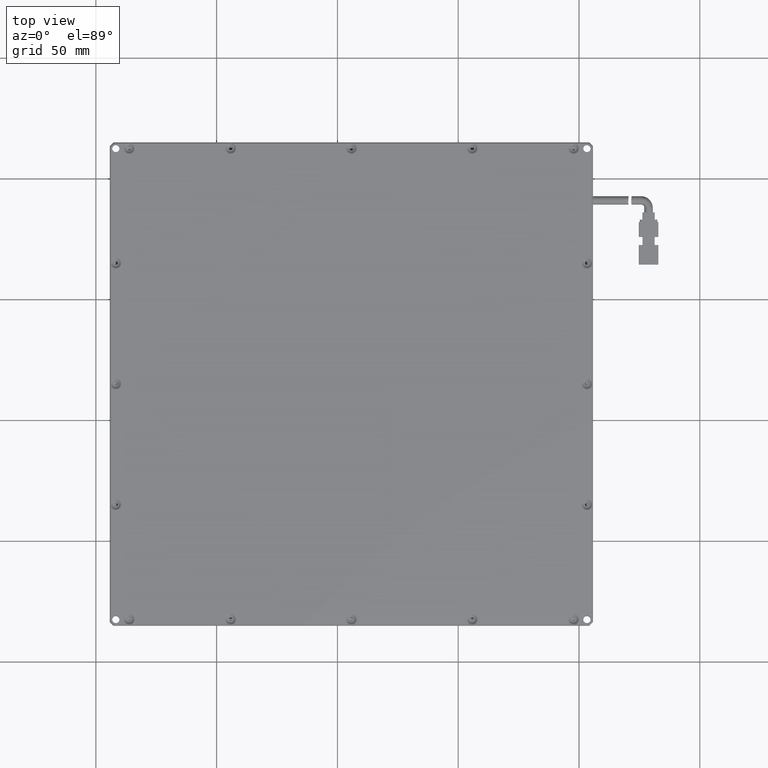
[diagram: clean part render]
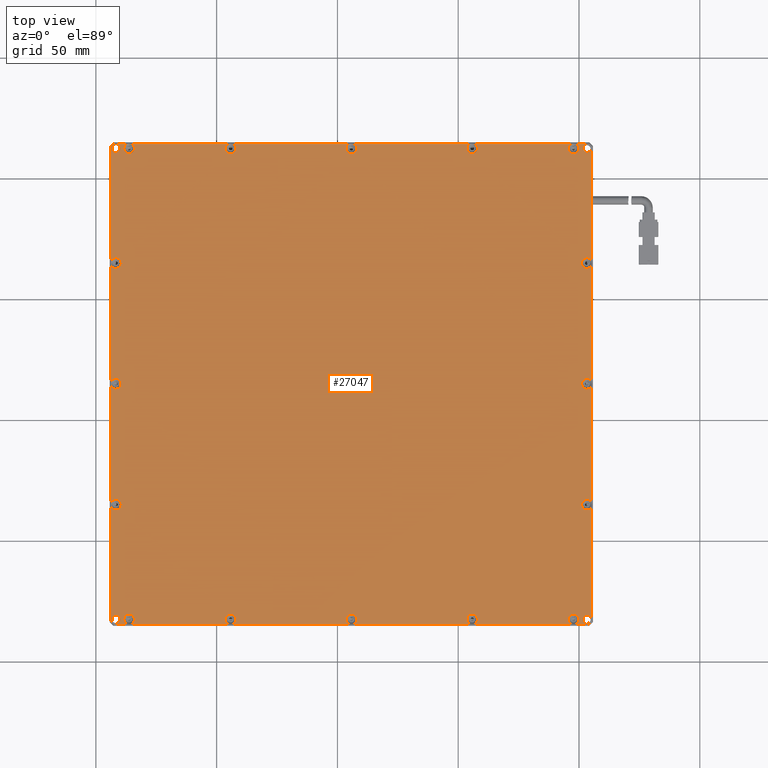
[diagram: same view with one face highlighted and labeled with its STEP entity id]
A machine part, top view. The second image highlights one B-rep face of the part: STEP entity #27047.
In plain terms, the highlighted planar face has unit normal (0, 0, -1).
Its self-contained STEP definition (entity closure, byte-faithful):
#115 = CIRCLE ( 'NONE', #29309, 2.200000000013913000 ) ;
#138 = DIRECTION ( 'NONE',  ( -0.0000000000000000000, 0.0000000000000000000, -1.000000000000000000 ) ) ;
#168 = VERTEX_POINT ( 'NONE', #12301 ) ;
#323 = EDGE_CURVE ( 'NONE', #27189, #15356, #30804, .T. ) ;
#335 = VECTOR ( 'NONE', #5288, 1000.000000000000100 ) ;
#409 = VERTEX_POINT ( 'NONE', #15234 ) ;
#416 = AXIS2_PLACEMENT_3D ( 'NONE', #30280, #15474, #718 ) ;
#519 = CIRCLE ( 'NONE', #26809, 2.199999999982077600 ) ;
#543 = AXIS2_PLACEMENT_3D ( 'NONE', #4890, #22145, #7360 ) ;
#649 = CARTESIAN_POINT ( 'NONE',  ( -142.5118486178745300, 114.4508215962441500, 5.999999999999998200 ) ) ;
#650 = VERTEX_POINT ( 'NONE', #6861 ) ;
#679 = AXIS2_PLACEMENT_3D ( 'NONE', #27394, #12621, #29919 ) ;
#718 = DIRECTION ( 'NONE',  ( 1.000000000000000000, 0.0000000000000000000, 0.0000000000000000000 ) ) ;
#730 = ORIENTED_EDGE ( 'NONE', *, *, #12303, .F. ) ;
#792 = CARTESIAN_POINT ( 'NONE',  ( -143.7189553990610600, 113.2437148150576400, 5.999999999999998200 ) ) ;
#837 = CARTESIAN_POINT ( 'NONE',  ( 55.28104460093899800, -83.34207162256933500, 5.999999999999998200 ) ) ;
#889 = CIRCLE ( 'NONE', #4505, 2.199999999950241800 ) ;
#928 = CARTESIAN_POINT ( 'NONE',  ( 6.697559739883507400, -84.54917840377363800, 5.999999999982263100 ) ) ;
#971 = CARTESIAN_POINT ( 'NONE',  ( -44.21895539906103800, 112.4508215962441300, 6.000000000078215700 ) ) ;
#973 = DIRECTION ( 'NONE',  ( 1.000000000000000000, -0.0000000000000000000, 0.0000000000000000000 ) ) ;
#998 = VERTEX_POINT ( 'NONE', #10264 ) ;
#1052 = CIRCLE ( 'NONE', #2603, 2.199999999997537300 ) ;
#1129 = DIRECTION ( 'NONE',  ( 1.000000000000000000, 0.0000000000000000000, 0.0000000000000000000 ) ) ;
#1281 = LINE ( 'NONE', #30991, #20203 ) ;
#1289 = ORIENTED_EDGE ( 'NONE', *, *, #18425, .F. ) ;
#1315 = EDGE_CURVE ( 'NONE', #9344, #6290, #26353, .T. ) ;
#1443 = DIRECTION ( 'NONE',  ( 1.000000000000000000, 0.0000000000000000000, 0.0000000000000000000 ) ) ;
#1445 = CIRCLE ( 'NONE', #11439, 2.199999999993429400 ) ;
#1447 = DIRECTION ( 'NONE',  ( 1.000000000000000000, 0.0000000000000000000, 0.0000000000000000000 ) ) ;
#1535 = DIRECTION ( 'NONE',  ( 0.7071067811865555700, 0.7071067811865393600, 0.0000000000000000000 ) ) ;
#1582 = CARTESIAN_POINT ( 'NONE',  ( 51.63104460093897800, 112.4508215962441300, 6.000000000000000000 ) ) ;
#1642 = DIRECTION ( 'NONE',  ( -0.0000000000000000000, 0.0000000000000000000, -1.000000000000000000 ) ) ;
#1714 = VERTEX_POINT ( 'NONE', #19188 ) ;
#1732 = CARTESIAN_POINT ( 'NONE',  ( 5.781044600938978200, 112.4508215962441300, 5.999999999964528800 ) ) ;
#2058 = ORIENTED_EDGE ( 'NONE', *, *, #27240, .T. ) ;
#2068 = CIRCLE ( 'NONE', #14246, 2.200000000013913000 ) ;
#2244 = FACE_BOUND ( 'NONE', #11600, .T. ) ;
#2260 = CARTESIAN_POINT ( 'NONE',  ( -94.21895539906103100, 112.4508215962441300, 6.000000000021372200 ) ) ;
#2297 = AXIS2_PLACEMENT_3D ( 'NONE', #5004, #22245, #7481 ) ;
#2336 = CIRCLE ( 'NONE', #12436, 2.199999999970697400 ) ;
#2344 = CARTESIAN_POINT ( 'NONE',  ( -44.21895539906103800, 112.4508215962441300, 6.000000000078215700 ) ) ;
#2383 = CARTESIAN_POINT ( 'NONE',  ( 55.28104460093899800, 15.86733673524372400, 5.999999999982263100 ) ) ;
#2411 = EDGE_CURVE ( 'NONE', #27755, #998, #18632, .T. ) ;
#2435 = CARTESIAN_POINT ( 'NONE',  ( -44.21895539906103800, -82.54917840375587400, 6.000000000078215700 ) ) ;
#2450 = AXIS2_PLACEMENT_3D ( 'NONE', #18334, #3564, #20800 ) ;
#2505 = AXIS2_PLACEMENT_3D ( 'NONE', #21582, #6801, #24063 ) ;
#2603 = AXIS2_PLACEMENT_3D ( 'NONE', #21851, #7087, #24337 ) ;
#2648 = CARTESIAN_POINT ( 'NONE',  ( -93.30244026010508700, -84.54917840375590300, 6.000000000010684800 ) ) ;
#2658 = AXIS2_PLACEMENT_3D ( 'NONE', #31011, #16217, #1447 ) ;
#2712 = ORIENTED_EDGE ( 'NONE', *, *, #14525, .F. ) ;
#2739 = AXIS2_PLACEMENT_3D ( 'NONE', #3472, #20709, #5927 ) ;
#2747 = ORIENTED_EDGE ( 'NONE', *, *, #7408, .F. ) ;
#2750 = CARTESIAN_POINT ( 'NONE',  ( -137.1354705380491900, -84.54917840375590300, 6.000000000010685700 ) ) ;
#2887 = VECTOR ( 'NONE', #8629, 1000.000000000000000 ) ;
#2959 = DIRECTION ( 'NONE',  ( -0.7071067811865393600, -0.7071067811865556800, 0.0000000000000000000 ) ) ;
#3016 = EDGE_CURVE ( 'NONE', #31150, #27711, #7062, .T. ) ;
#3053 = CARTESIAN_POINT ( 'NONE',  ( -141.7189553990610300, -82.54917840375587400, 6.000000000000000000 ) ) ;
#3059 = EDGE_CURVE ( 'NONE', #30426, #409, #17129, .T. ) ;
#3093 = AXIS2_PLACEMENT_3D ( 'NONE', #14079, #31338, #16569 ) ;
#3097 = CARTESIAN_POINT ( 'NONE',  ( 53.28104460093896200, 64.95082159624411100, 5.999999999964528800 ) ) ;
#3101 = AXIS2_PLACEMENT_3D ( 'NONE', #3053, #20324, #5516 ) ;
#3183 = LINE ( 'NONE', #22408, #15532 ) ;
#3194 = CARTESIAN_POINT ( 'NONE',  ( 48.69755973989006700, -84.54917840375590300, 5.999999999982264000 ) ) ;
#3228 = DIRECTION ( 'NONE',  ( 0.0000000000000000000, 0.0000000000000000000, -1.000000000000000000 ) ) ;
#3288 = LINE ( 'NONE', #11451, #22163 ) ;
#3329 = CARTESIAN_POINT ( 'NONE',  ( 7.981044600932407600, -82.54917840375587400, 5.999999999964528800 ) ) ;
#3381 = ORIENTED_EDGE ( 'NONE', *, *, #23595, .F. ) ;
#3398 = VERTEX_POINT ( 'NONE', #14727 ) ;
#3443 = DIRECTION ( 'NONE',  ( 1.000000000000000000, 0.0000000000000000000, 0.0000000000000000000 ) ) ;
#3448 = CARTESIAN_POINT ( 'NONE',  ( 54.93104460093894700, -82.54917840375587400, 6.000000000000000000 ) ) ;
#3454 = DIRECTION ( 'NONE',  ( -0.0000000000000000000, -4.928191693181569400E-017, -1.000000000000000000 ) ) ;
#3472 = CARTESIAN_POINT ( 'NONE',  ( -94.21895539906103100, -82.54917840375587400, 6.000000000021372200 ) ) ;
#3564 = DIRECTION ( 'NONE',  ( -0.0000000000000000000, 0.0000000000000000000, -1.000000000000000000 ) ) ;
#3684 = VERTEX_POINT ( 'NONE', #25670 ) ;
#3700 = CARTESIAN_POINT ( 'NONE',  ( -135.3024402600728700, 114.4508215962441500, 6.000000000010684800 ) ) ;
#3728 = CARTESIAN_POINT ( 'NONE',  ( 54.07393781975245200, -84.54917840375590300, 5.999999999999993800 ) ) ;
#3734 = AXIS2_PLACEMENT_3D ( 'NONE', #13672, #30932, #16146 ) ;
#3822 = EDGE_CURVE ( 'NONE', #3684, #26266, #18386, .T. ) ;
#3859 = DIRECTION ( 'NONE',  ( 0.0000000000000000000, 0.0000000000000000000, -1.000000000000000000 ) ) ;
#3876 = VERTEX_POINT ( 'NONE', #21570 ) ;
#3886 = CARTESIAN_POINT ( 'NONE',  ( -45.13547053803061700, -84.54917840375590300, 6.000000000039107400 ) ) ;
#3984 = AXIS2_PLACEMENT_3D ( 'NONE', #5285, #22552, #7757 ) ;
#3994 = CARTESIAN_POINT ( 'NONE',  ( -142.5118486178744800, -84.54917840375591700, 6.000000000000005300 ) ) ;
#4014 = CARTESIAN_POINT ( 'NONE',  ( -45.13547053803063100, 114.4508215962441500, 6.000000000039106500 ) ) ;
#4023 = CARTESIAN_POINT ( 'NONE',  ( 45.58104460097234100, 112.4508215962441300, 5.999999999964528800 ) ) ;
#4052 = EDGE_CURVE ( 'NONE', #10894, #7056, #16038, .T. ) ;
#4092 = CARTESIAN_POINT ( 'NONE',  ( -94.21895539906103100, 110.2508215962734300, 6.000000000021372200 ) ) ;
#4099 = AXIS2_PLACEMENT_3D ( 'NONE', #28118, #13359, #30646 ) ;
#4126 = CARTESIAN_POINT ( 'NONE',  ( -144.2189553990610300, 114.4508215962441500, 5.999999999999998200 ) ) ;
#4158 = VERTEX_POINT ( 'NONE', #12793 ) ;
#4192 = DIRECTION ( 'NONE',  ( 1.000000000000000000, 0.0000000000000000000, 0.0000000000000000000 ) ) ;
#4206 = ORIENTED_EDGE ( 'NONE', *, *, #20848, .F. ) ;
#4210 = ORIENTED_EDGE ( 'NONE', *, *, #18709, .T. ) ;
#4287 = CARTESIAN_POINT ( 'NONE',  ( -143.7189553990610600, 65.86733673525192500, 6.000000000039106500 ) ) ;
#4365 = EDGE_CURVE ( 'NONE', #14537, #10612, #29495, .T. ) ;
#4493 = CIRCLE ( 'NONE', #7913, 2.199999999966617500 ) ;
#4505 = AXIS2_PLACEMENT_3D ( 'NONE', #29518, #14730, #31996 ) ;
#4529 = VECTOR ( 'NONE', #1535, 1000.000000000000100 ) ;
#4533 = ORIENTED_EDGE ( 'NONE', *, *, #18214, .F. ) ;
#4547 = VERTEX_POINT ( 'NONE', #8621 ) ;
#4622 = PLANE ( 'NONE',  #14457 ) ;
#4663 = DIRECTION ( 'NONE',  ( 1.000000000000000000, -0.0000000000000000000, 0.0000000000000000000 ) ) ;
#4724 = DIRECTION ( 'NONE',  ( 0.0000000000000000000, -1.000000000000000000, 0.0000000000000000000 ) ) ;
#4749 = EDGE_CURVE ( 'NONE', #17755, #30051, #889, .T. ) ;
#4788 = VECTOR ( 'NONE', #4663, 1000.000000000000000 ) ;
#4806 = DIRECTION ( 'NONE',  ( 1.000000000000000000, 0.0000000000000000000, 0.0000000000000000000 ) ) ;
#4833 = EDGE_CURVE ( 'NONE', #31372, #28449, #12420, .T. ) ;
#4890 = CARTESIAN_POINT ( 'NONE',  ( 47.78104460093896200, 112.4508215962441300, 5.999999999964528800 ) ) ;
#4896 = DIRECTION ( 'NONE',  ( 1.000000000000000000, 0.0000000000000000000, 0.0000000000000000000 ) ) ;
#4933 = ORIENTED_EDGE ( 'NONE', *, *, #3059, .F. ) ;
#5004 = CARTESIAN_POINT ( 'NONE',  ( -136.2189553990610300, 112.4508215962441300, 6.000000000021372200 ) ) ;
#5022 = EDGE_CURVE ( 'NONE', #9980, #17084, #7024, .T. ) ;
#5205 = CARTESIAN_POINT ( 'NONE',  ( -43.30244026009140200, -84.54917840375590300, 6.000000000039107400 ) ) ;
#5260 = ORIENTED_EDGE ( 'NONE', *, *, #11859, .T. ) ;
#5270 = ORIENTED_EDGE ( 'NONE', *, *, #15395, .T. ) ;
#5277 = CARTESIAN_POINT ( 'NONE',  ( -143.7189553990484400, 15.86733673527518500, 6.000000000012625500 ) ) ;
#5285 = CARTESIAN_POINT ( 'NONE',  ( 53.28104460093896200, 112.4508215962441300, 6.000000000000000000 ) ) ;
#5288 = DIRECTION ( 'NONE',  ( -0.7071067811865474600, 0.7071067811865474600, 0.0000000000000000000 ) ) ;
#5314 = EDGE_CURVE ( 'NONE', #9324, #26472, #13160, .T. ) ;
#5342 = EDGE_CURVE ( 'NONE', #28448, #5813, #22393, .T. ) ;
#5412 = CARTESIAN_POINT ( 'NONE',  ( 55.28104460093899800, -83.34207162256933500, 5.999999999999998200 ) ) ;
#5427 = CARTESIAN_POINT ( 'NONE',  ( -143.3689553990610400, -82.54917840375587400, 6.000000000000000000 ) ) ;
#5456 = ORIENTED_EDGE ( 'NONE', *, *, #28887, .F. ) ;
#5495 = CARTESIAN_POINT ( 'NONE',  ( 51.08104460098872600, 64.95082159624411100, 5.999999999964528800 ) ) ;
#5516 = DIRECTION ( 'NONE',  ( 1.000000000000000000, 0.0000000000000000000, 0.0000000000000000000 ) ) ;
#5522 = DIRECTION ( 'NONE',  ( 0.0000000000000000000, 4.928191693084763900E-017, 1.000000000000000000 ) ) ;
#5557 = DIRECTION ( 'NONE',  ( 1.000000000000000000, 0.0000000000000000000, 0.0000000000000000000 ) ) ;
#5610 = VECTOR ( 'NONE', #12251, 1000.000000000000000 ) ;
#5644 = CARTESIAN_POINT ( 'NONE',  ( 5.781044600938978200, 112.4508215962441300, 5.999999999964528800 ) ) ;
#5713 = CIRCLE ( 'NONE', #12410, 1.649999999999984800 ) ;
#5721 = VERTEX_POINT ( 'NONE', #837 ) ;
#5766 = DIRECTION ( 'NONE',  ( -1.000000000000000000, 0.0000000000000000000, -0.0000000000000000000 ) ) ;
#5777 = CARTESIAN_POINT ( 'NONE',  ( -144.2189553990610300, 114.4508215962441500, 5.999999999999998200 ) ) ;
#5813 = VERTEX_POINT ( 'NONE', #8456 ) ;
#5880 = CARTESIAN_POINT ( 'NONE',  ( -46.41895539904311400, 112.4508215962441300, 6.000000000078215700 ) ) ;
#5907 = CARTESIAN_POINT ( 'NONE',  ( 53.28104460093896200, -35.04917840375588900, 5.999999999964528800 ) ) ;
#5927 = DIRECTION ( 'NONE',  ( 0.0000000000000000000, -1.000000000000000000, 0.0000000000000000000 ) ) ;
#6006 = EDGE_CURVE ( 'NONE', #20522, #23430, #14241, .T. ) ;
#6015 = VECTOR ( 'NONE', #31216, 1000.000000000000000 ) ;
#6098 = ORIENTED_EDGE ( 'NONE', *, *, #29240, .F. ) ;
#6132 = CARTESIAN_POINT ( 'NONE',  ( -144.2189553990610300, -84.54917840375590300, 5.999999999999998200 ) ) ;
#6187 = EDGE_CURVE ( 'NONE', #30233, #3398, #17329, .T. ) ;
#6206 = VECTOR ( 'NONE', #5766, 1000.000000000000000 ) ;
#6290 = VERTEX_POINT ( 'NONE', #11071 ) ;
#6390 = DIRECTION ( 'NONE',  ( 0.0000000000000000000, -0.0000000000000000000, 1.000000000000000000 ) ) ;
#6420 = VECTOR ( 'NONE', #23834, 1000.000000000000000 ) ;
#6447 = ORIENTED_EDGE ( 'NONE', *, *, #12364, .F. ) ;
#6451 = LINE ( 'NONE', #12974, #19635 ) ;
#6622 = CIRCLE ( 'NONE', #679, 2.200000000013913000 ) ;
#6648 = VERTEX_POINT ( 'NONE', #8468 ) ;
#6697 = DIRECTION ( 'NONE',  ( 0.7071067811865474600, -0.7071067811865474600, 0.0000000000000000000 ) ) ;
#6733 = ORIENTED_EDGE ( 'NONE', *, *, #23113, .F. ) ;
#6801 = DIRECTION ( 'NONE',  ( 0.0000000000000000000, -0.0000000000000000000, 1.000000000000000000 ) ) ;
#6829 = VERTEX_POINT ( 'NONE', #18936 ) ;
#6831 = EDGE_CURVE ( 'NONE', #409, #6829, #3288, .T. ) ;
#6861 = CARTESIAN_POINT ( 'NONE',  ( -95.13547053801694600, -84.54917840375590300, 6.000000000010684800 ) ) ;
#6912 = CARTESIAN_POINT ( 'NONE',  ( 55.28104460093899800, 114.9508215962441300, 5.999999999999998200 ) ) ;
#6965 = CARTESIAN_POINT ( 'NONE',  ( -136.2189553990610300, -80.34917840375834400, 6.000000000021372200 ) ) ;
#6972 = CARTESIAN_POINT ( 'NONE',  ( 48.69755973989006700, 114.4508215962441500, 5.999999999982263100 ) ) ;
#7024 = CIRCLE ( 'NONE', #22071, 2.200000000013913000 ) ;
#7056 = VERTEX_POINT ( 'NONE', #3194 ) ;
#7062 = CIRCLE ( 'NONE', #15207, 1.649999999999984800 ) ;
#7087 = DIRECTION ( 'NONE',  ( 0.0000000000000000000, 4.928191693121445900E-017, 1.000000000000000000 ) ) ;
#7088 = VECTOR ( 'NONE', #2959, 1000.000000000000000 ) ;
#7103 = ORIENTED_EDGE ( 'NONE', *, *, #5022, .T. ) ;
#7172 = CARTESIAN_POINT ( 'NONE',  ( 47.78104460093896200, -82.54917840375587400, 5.999999999964528800 ) ) ;
#7175 = CARTESIAN_POINT ( 'NONE',  ( -144.2189553990610300, -84.54917840375590300, 5.999999999999998200 ) ) ;
#7196 = EDGE_CURVE ( 'NONE', #12975, #30051, #13655, .T. ) ;
#7313 = DIRECTION ( 'NONE',  ( 0.0000000000000000000, 0.0000000000000000000, -1.000000000000000000 ) ) ;
#7360 = DIRECTION ( 'NONE',  ( 1.000000000000000000, 0.0000000000000000000, 0.0000000000000000000 ) ) ;
#7408 = EDGE_CURVE ( 'NONE', #10612, #18819, #1281, .T. ) ;
#7444 = CARTESIAN_POINT ( 'NONE',  ( 51.08104460093188200, 14.95082159624412700, 5.999999999964528800 ) ) ;
#7481 = DIRECTION ( 'NONE',  ( 0.0000000000000000000, -1.000000000000000000, 0.0000000000000000000 ) ) ;
#7639 = LINE ( 'NONE', #22553, #335 ) ;
#7689 = CARTESIAN_POINT ( 'NONE',  ( 55.28104460095673300, 65.86733673513683100, 5.999999999982263100 ) ) ;
#7699 = EDGE_CURVE ( 'NONE', #6290, #20046, #519, .T. ) ;
#7732 = CARTESIAN_POINT ( 'NONE',  ( -93.30244026010507200, 114.4508215962441500, 6.000000000010684800 ) ) ;
#7757 = DIRECTION ( 'NONE',  ( 1.000000000000000000, 0.0000000000000000000, 0.0000000000000000000 ) ) ;
#7795 = CARTESIAN_POINT ( 'NONE',  ( -94.21895539906103100, 112.4508215962441300, 6.000000000021372200 ) ) ;
#7813 = EDGE_CURVE ( 'NONE', #28811, #28316, #20931, .T. ) ;
#7835 = EDGE_CURVE ( 'NONE', #20401, #26266, #27467, .T. ) ;
#7861 = VERTEX_POINT ( 'NONE', #25721 ) ;
#7871 = VERTEX_POINT ( 'NONE', #13461 ) ;
#7913 = AXIS2_PLACEMENT_3D ( 'NONE', #7172, #24433, #9679 ) ;
#7997 = AXIS2_PLACEMENT_3D ( 'NONE', #27712, #12946, #30240 ) ;
#8079 = CIRCLE ( 'NONE', #26701, 2.199999999982077600 ) ;
#8128 = DIRECTION ( 'NONE',  ( 1.000000000000000000, 6.308085367207229200E-015, 0.0000000000000000000 ) ) ;
#8378 = DIRECTION ( 'NONE',  ( 1.000000000000000000, 3.154042683665530700E-015, 0.0000000000000000000 ) ) ;
#8393 = CARTESIAN_POINT ( 'NONE',  ( -143.7189553990591300, 14.03430645723639700, 6.000000000012623700 ) ) ;
#8404 = ORIENTED_EDGE ( 'NONE', *, *, #23929, .F. ) ;
#8417 = CARTESIAN_POINT ( 'NONE',  ( -143.7189553990610600, 114.9508215962441300, 5.999999999999998200 ) ) ;
#8456 = CARTESIAN_POINT ( 'NONE',  ( -46.41895539904311400, -82.54917840375587400, 6.000000000078215700 ) ) ;
#8464 = VERTEX_POINT ( 'NONE', #29228 ) ;
#8468 = CARTESIAN_POINT ( 'NONE',  ( 3.581044600945548800, -82.54917840375587400, 5.999999999964528800 ) ) ;
#8489 = LINE ( 'NONE', #31376, #14267 ) ;
#8621 = CARTESIAN_POINT ( 'NONE',  ( -135.3024402600728700, -84.54917840375590300, 6.000000000010685700 ) ) ;
#8629 = DIRECTION ( 'NONE',  ( -1.000000000000000000, 0.0000000000000000000, -0.0000000000000000000 ) ) ;
#8670 = AXIS2_PLACEMENT_3D ( 'NONE', #21175, #6390, #23666 ) ;
#8722 = ORIENTED_EDGE ( 'NONE', *, *, #23710, .F. ) ;
#8772 = EDGE_CURVE ( 'NONE', #17839, #15398, #5713, .T. ) ;
#8787 = FACE_BOUND ( 'NONE', #25370, .T. ) ;
#8804 = EDGE_CURVE ( 'NONE', #23877, #19591, #31983, .T. ) ;
#8851 = CARTESIAN_POINT ( 'NONE',  ( -143.7189553990610600, -83.34207162256933500, 5.999999999999998200 ) ) ;
#8854 = DIRECTION ( 'NONE',  ( -0.0000000000000000000, -1.000000000000000000, -0.0000000000000000000 ) ) ;
#8968 = CARTESIAN_POINT ( 'NONE',  ( -141.7189553990610300, 17.15082159625804100, 6.000000000021372200 ) ) ;
#8971 = CARTESIAN_POINT ( 'NONE',  ( -144.2189553990610300, -84.54917840375590300, 5.999999999999998200 ) ) ;
#8998 = EDGE_CURVE ( 'NONE', #11868, #7871, #27690, .T. ) ;
#9022 = VECTOR ( 'NONE', #17172, 1000.000000000000000 ) ;
#9028 = VECTOR ( 'NONE', #8854, 1000.000000000000000 ) ;
#9117 = CARTESIAN_POINT ( 'NONE',  ( -143.7189553990610600, 114.9508215962441300, 5.999999999999998200 ) ) ;
#9130 = EDGE_CURVE ( 'NONE', #8464, #7861, #18441, .T. ) ;
#9324 = VERTEX_POINT ( 'NONE', #20676 ) ;
#9344 = VERTEX_POINT ( 'NONE', #5880 ) ;
#9455 = DIRECTION ( 'NONE',  ( -0.0000000000000000000, 0.0000000000000000000, -1.000000000000000000 ) ) ;
#9514 = ORIENTED_EDGE ( 'NONE', *, *, #17994, .F. ) ;
#9528 = CIRCLE ( 'NONE', #18870, 2.199999999997537300 ) ;
#9578 = FACE_BOUND ( 'NONE', #23491, .T. ) ;
#9679 = DIRECTION ( 'NONE',  ( 1.000000000000000000, 0.0000000000000000000, 0.0000000000000000000 ) ) ;
#9696 = DIRECTION ( 'NONE',  ( 0.0000000000000000000, 0.0000000000000000000, -1.000000000000000000 ) ) ;
#9709 = CARTESIAN_POINT ( 'NONE',  ( 55.28104460093899800, 14.03430645724447400, 5.999999999982263100 ) ) ;
#9717 = CARTESIAN_POINT ( 'NONE',  ( -136.2189553990610300, -82.54917840375587400, 6.000000000021372200 ) ) ;
#9790 = CARTESIAN_POINT ( 'NONE',  ( -143.7189553990610600, 114.9508215962441300, 5.999999999999998200 ) ) ;
#9967 = EDGE_CURVE ( 'NONE', #650, #4547, #8489, .T. ) ;
#9980 = VERTEX_POINT ( 'NONE', #4287 ) ;
#10026 = DIRECTION ( 'NONE',  ( 0.0000000000000000000, 0.0000000000000000000, 1.000000000000000000 ) ) ;
#10111 = CARTESIAN_POINT ( 'NONE',  ( 53.28104460093896200, 64.95082159624411100, 5.999999999964528800 ) ) ;
#10262 = DIRECTION ( 'NONE',  ( 0.0000000000000000000, -0.0000000000000000000, 1.000000000000000000 ) ) ;
#10264 = CARTESIAN_POINT ( 'NONE',  ( -140.0689553990610500, -82.54917840375587400, 6.000000000000000000 ) ) ;
#10316 = DIRECTION ( 'NONE',  ( 0.0000000000000000000, -1.000000000000000000, 0.0000000000000000000 ) ) ;
#10438 = ORIENTED_EDGE ( 'NONE', *, *, #21741, .T. ) ;
#10474 = CARTESIAN_POINT ( 'NONE',  ( -44.21895539906103800, -82.54917840375587400, 6.000000000078215700 ) ) ;
#10495 = CARTESIAN_POINT ( 'NONE',  ( -139.5189553990471200, 64.95082159624411100, 6.000000000078215700 ) ) ;
#10612 = VERTEX_POINT ( 'NONE', #2750 ) ;
#10698 = ORIENTED_EDGE ( 'NONE', *, *, #20237, .F. ) ;
#10894 = VERTEX_POINT ( 'NONE', #3728 ) ;
#11019 = ORIENTED_EDGE ( 'NONE', *, *, #5342, .F. ) ;
#11071 = CARTESIAN_POINT ( 'NONE',  ( -42.01895539907896200, 112.4508215962441300, 6.000000000078215700 ) ) ;
#11138 = LINE ( 'NONE', #8417, #23490 ) ;
#11174 = CARTESIAN_POINT ( 'NONE',  ( -143.3689553990610400, 112.4508215962441300, 6.000000000000000000 ) ) ;
#11212 = ORIENTED_EDGE ( 'NONE', *, *, #19938, .F. ) ;
#11219 = CIRCLE ( 'NONE', #31392, 2.200000000007085200 ) ;
#11247 = VERTEX_POINT ( 'NONE', #23360 ) ;
#11337 = LINE ( 'NONE', #29268, #4788 ) ;
#11411 = DIRECTION ( 'NONE',  ( -0.0000000000000000000, 0.0000000000000000000, -1.000000000000000000 ) ) ;
#11439 = AXIS2_PLACEMENT_3D ( 'NONE', #1732, #18980, #4192 ) ;
#11451 = CARTESIAN_POINT ( 'NONE',  ( 54.07393781975239500, 114.4508215962441500, 5.999999999999998200 ) ) ;
#11600 = EDGE_LOOP ( 'NONE', ( #2058, #25570 ) ) ;
#11676 = ORIENTED_EDGE ( 'NONE', *, *, #8772, .T. ) ;
#11856 = EDGE_CURVE ( 'NONE', #168, #8464, #2068, .T. ) ;
#11859 = EDGE_CURVE ( 'NONE', #6648, #20401, #27526, .T. ) ;
#11868 = VERTEX_POINT ( 'NONE', #4023 ) ;
#11974 = ORIENTED_EDGE ( 'NONE', *, *, #19830, .T. ) ;
#12181 = DIRECTION ( 'NONE',  ( 0.0000000000000000000, -1.000000000000000000, 0.0000000000000000000 ) ) ;
#12218 = CARTESIAN_POINT ( 'NONE',  ( 51.63104460093897800, -82.54917840375587400, 6.000000000000000000 ) ) ;
#12251 = DIRECTION ( 'NONE',  ( 0.0000000000000000000, 1.000000000000000000, 0.0000000000000000000 ) ) ;
#12276 = DIRECTION ( 'NONE',  ( 1.000000000000000000, -0.0000000000000000000, 0.0000000000000000000 ) ) ;
#12301 = CARTESIAN_POINT ( 'NONE',  ( -143.7189553990610600, -34.13266326474807500, 6.000000000039106500 ) ) ;
#12303 = EDGE_CURVE ( 'NONE', #7871, #30426, #22566, .T. ) ;
#12329 = VERTEX_POINT ( 'NONE', #8393 ) ;
#12364 = EDGE_CURVE ( 'NONE', #15262, #26892, #11337, .T. ) ;
#12372 = CARTESIAN_POINT ( 'NONE',  ( -144.2189553990610300, 114.4508215962441500, 5.999999999999998200 ) ) ;
#12410 = AXIS2_PLACEMENT_3D ( 'NONE', #27989, #13246, #30536 ) ;
#12420 = CIRCLE ( 'NONE', #12771, 2.199999999950241800 ) ;
#12436 = AXIS2_PLACEMENT_3D ( 'NONE', #2260, #19531, #4724 ) ;
#12548 = DIRECTION ( 'NONE',  ( 1.000000000000000000, 0.0000000000000000000, 0.0000000000000000000 ) ) ;
#12555 = ORIENTED_EDGE ( 'NONE', *, *, #16064, .F. ) ;
#12582 = AXIS2_PLACEMENT_3D ( 'NONE', #16414, #1642, #18900 ) ;
#12621 = DIRECTION ( 'NONE',  ( 0.0000000000000000000, 4.928191693084763900E-017, 1.000000000000000000 ) ) ;
#12641 = EDGE_LOOP ( 'NONE', ( #31878, #15283, #11019, #21431, #31905, #30005, #5260, #21463, #22240, #12555, #6733, #30366, #24525, #8722, #9514, #5270, #19186, #21475, #10698, #31173, #26910, #21886, #25734, #8404, #28857, #4933, #730, #26934, #3381, #23797, #18039, #13791, #28439, #4533, #19213, #14182, #21503, #6447, #25426, #10438, #17773, #2712, #27415, #5456, #22314, #30934, #7103, #11974, #18480, #22803, #21359, #4206, #11212, #30609, #24243, #6098, #14692, #2747, #27397, #1289, #18163, #4210, #21953 ) ) ;
#12679 = DIRECTION ( 'NONE',  ( -0.0000000000000000000, 0.0000000000000000000, -1.000000000000000000 ) ) ;
#12771 = AXIS2_PLACEMENT_3D ( 'NONE', #10111, #27334, #12548 ) ;
#12788 = LINE ( 'NONE', #27870, #6206 ) ;
#12793 = CARTESIAN_POINT ( 'NONE',  ( 4.864529461955758200, -84.54917840375590300, 5.999999999982263100 ) ) ;
#12943 = DIRECTION ( 'NONE',  ( 1.000000000000000000, 0.0000000000000000000, 0.0000000000000000000 ) ) ;
#12946 = DIRECTION ( 'NONE',  ( 0.0000000000000000000, 4.928191693121445900E-017, 1.000000000000000000 ) ) ;
#12974 = CARTESIAN_POINT ( 'NONE',  ( 55.28104460093899800, 114.9508215962441300, 5.999999999999998200 ) ) ;
#12975 = VERTEX_POINT ( 'NONE', #9709 ) ;
#13160 = CIRCLE ( 'NONE', #3734, 2.200000000013913000 ) ;
#13203 = AXIS2_PLACEMENT_3D ( 'NONE', #24194, #9455, #26682 ) ;
#13227 = CIRCLE ( 'NONE', #3984, 1.649999999999984800 ) ;
#13246 = DIRECTION ( 'NONE',  ( 0.0000000000000000000, 0.0000000000000000000, -1.000000000000000000 ) ) ;
#13278 = AXIS2_PLACEMENT_3D ( 'NONE', #10474, #27708, #12943 ) ;
#13359 = DIRECTION ( 'NONE',  ( 0.0000000000000000000, 0.0000000000000000000, 1.000000000000000000 ) ) ;
#13461 = CARTESIAN_POINT ( 'NONE',  ( 49.98104460090557700, 112.4508215962441300, 5.999999999964528800 ) ) ;
#13610 = DIRECTION ( 'NONE',  ( -1.000000000000000000, 0.0000000000000000000, -0.0000000000000000000 ) ) ;
#13655 = LINE ( 'NONE', #25236, #25963 ) ;
#13672 = CARTESIAN_POINT ( 'NONE',  ( -141.7189553990610300, 14.95082159624412700, 6.000000000021372200 ) ) ;
#13712 = CIRCLE ( 'NONE', #543, 2.199999999966617500 ) ;
#13731 = CARTESIAN_POINT ( 'NONE',  ( 55.28104460093899800, 114.9508215962441300, 5.999999999999998200 ) ) ;
#13791 = ORIENTED_EDGE ( 'NONE', *, *, #14419, .T. ) ;
#13864 = CARTESIAN_POINT ( 'NONE',  ( -140.0689553990610500, 112.4508215962441300, 6.000000000000000000 ) ) ;
#13933 = DIRECTION ( 'NONE',  ( -0.0000000000000000000, 0.0000000000000000000, -1.000000000000000000 ) ) ;
#14041 = DIRECTION ( 'NONE',  ( 0.0000000000000000000, 1.000000000000000000, 0.0000000000000000000 ) ) ;
#14079 = CARTESIAN_POINT ( 'NONE',  ( 47.78104460093896200, -82.54917840375587400, 5.999999999964528800 ) ) ;
#14105 = EDGE_CURVE ( 'NONE', #18819, #18191, #7639, .T. ) ;
#14112 = DIRECTION ( 'NONE',  ( -1.000000000000000000, 0.0000000000000000000, -0.0000000000000000000 ) ) ;
#14182 = ORIENTED_EDGE ( 'NONE', *, *, #1315, .F. ) ;
#14227 = CIRCLE ( 'NONE', #31045, 2.200000000013913000 ) ;
#14241 = CIRCLE ( 'NONE', #2297, 2.199999999997537300 ) ;
#14246 = AXIS2_PLACEMENT_3D ( 'NONE', #26197, #11411, #28686 ) ;
#14267 = VECTOR ( 'NONE', #14112, 1000.000000000000000 ) ;
#14419 = EDGE_CURVE ( 'NONE', #3876, #1714, #1445, .T. ) ;
#14457 = AXIS2_PLACEMENT_3D ( 'NONE', #24457, #9696, #26943 ) ;
#14522 = DIRECTION ( 'NONE',  ( 0.0000000000000000000, -0.0000000000000000000, 1.000000000000000000 ) ) ;
#14525 = EDGE_CURVE ( 'NONE', #23430, #30233, #1052, .T. ) ;
#14537 = VERTEX_POINT ( 'NONE', #6965 ) ;
#14566 = CIRCLE ( 'NONE', #13278, 2.199999999982077600 ) ;
#14661 = CARTESIAN_POINT ( 'NONE',  ( -144.2189553990610300, 114.4508215962441500, 5.999999999999998200 ) ) ;
#14692 = ORIENTED_EDGE ( 'NONE', *, *, #14105, .F. ) ;
#14727 = CARTESIAN_POINT ( 'NONE',  ( -95.13547053801696100, 114.4508215962441500, 6.000000000010684800 ) ) ;
#14730 = DIRECTION ( 'NONE',  ( -0.0000000000000000000, 0.0000000000000000000, -1.000000000000000000 ) ) ;
#14884 = AXIS2_PLACEMENT_3D ( 'NONE', #30691, #15898, #1129 ) ;
#14897 = CARTESIAN_POINT ( 'NONE',  ( -141.7189553990610300, 64.95082159624411100, 6.000000000078215700 ) ) ;
#15019 = CARTESIAN_POINT ( 'NONE',  ( 55.28104460095673300, -34.13266326486319700, 5.999999999982263100 ) ) ;
#15080 = EDGE_LOOP ( 'NONE', ( #29288, #22758 ) ) ;
#15087 = CARTESIAN_POINT ( 'NONE',  ( -143.7189553990610600, 113.2437148150576400, 5.999999999999998200 ) ) ;
#15207 = AXIS2_PLACEMENT_3D ( 'NONE', #22089, #7313, #24562 ) ;
#15221 = CARTESIAN_POINT ( 'NONE',  ( 6.697559739922254200, 114.4508215962441500, 5.999999999982263100 ) ) ;
#15234 = CARTESIAN_POINT ( 'NONE',  ( 54.07393781975242300, 114.4508215962441300, 6.000000000000003600 ) ) ;
#15262 = VERTEX_POINT ( 'NONE', #7732 ) ;
#15283 = ORIENTED_EDGE ( 'NONE', *, *, #26071, .F. ) ;
#15356 = VERTEX_POINT ( 'NONE', #649 ) ;
#15366 = FACE_OUTER_BOUND ( 'NONE', #12641, .T. ) ;
#15395 = EDGE_CURVE ( 'NONE', #28354, #17755, #28236, .T. ) ;
#15398 = VERTEX_POINT ( 'NONE', #3448 ) ;
#15451 = DIRECTION ( 'NONE',  ( -0.0000000000000000000, -1.000000000000000000, -0.0000000000000000000 ) ) ;
#15465 = DIRECTION ( 'NONE',  ( -0.0000000000000000000, -1.000000000000000000, -0.0000000000000000000 ) ) ;
#15474 = DIRECTION ( 'NONE',  ( 0.0000000000000000000, 0.0000000000000000000, -1.000000000000000000 ) ) ;
#15532 = VECTOR ( 'NONE', #27372, 1000.000000000000000 ) ;
#15625 = LINE ( 'NONE', #13731, #9028 ) ;
#15736 = CARTESIAN_POINT ( 'NONE',  ( 49.98104460090557700, -82.54917840375587400, 5.999999999964528800 ) ) ;
#15898 = DIRECTION ( 'NONE',  ( 0.0000000000000000000, 0.0000000000000000000, -1.000000000000000000 ) ) ;
#16038 = LINE ( 'NONE', #7175, #28357 ) ;
#16064 = EDGE_CURVE ( 'NONE', #27935, #3684, #25024, .T. ) ;
#16146 = DIRECTION ( 'NONE',  ( 0.0000000000000000000, -1.000000000000000000, 0.0000000000000000000 ) ) ;
#16215 = DIRECTION ( 'NONE',  ( -0.0000000000000000000, 0.0000000000000000000, -1.000000000000000000 ) ) ;
#16217 = DIRECTION ( 'NONE',  ( 0.0000000000000000000, -0.0000000000000000000, 1.000000000000000000 ) ) ;
#16414 = CARTESIAN_POINT ( 'NONE',  ( 5.781044600938978200, -82.54917840375587400, 5.999999999964528800 ) ) ;
#16555 = VECTOR ( 'NONE', #973, 1000.000000000000000 ) ;
#16569 = DIRECTION ( 'NONE',  ( 1.000000000000000000, 0.0000000000000000000, 0.0000000000000000000 ) ) ;
#16575 = AXIS2_PLACEMENT_3D ( 'NONE', #28695, #13933, #31207 ) ;
#16876 = AXIS2_PLACEMENT_3D ( 'NONE', #5907, #23172, #8378 ) ;
#16891 = DIRECTION ( 'NONE',  ( -0.0000000000000000000, -1.000000000000000000, -0.0000000000000000000 ) ) ;
#16898 = CARTESIAN_POINT ( 'NONE',  ( 51.08104460098872600, -35.04917840375588900, 5.999999999964528800 ) ) ;
#16990 = AXIS2_PLACEMENT_3D ( 'NONE', #18647, #3859, #21079 ) ;
#17084 = VERTEX_POINT ( 'NONE', #10495 ) ;
#17129 = LINE ( 'NONE', #12372, #30265 ) ;
#17172 = DIRECTION ( 'NONE',  ( 1.000000000000000000, -0.0000000000000000000, 0.0000000000000000000 ) ) ;
#17260 = CIRCLE ( 'NONE', #28713, 1.649999999999984800 ) ;
#17329 = LINE ( 'NONE', #5777, #16555 ) ;
#17383 = CIRCLE ( 'NONE', #3093, 2.199999999966617500 ) ;
#17395 = DIRECTION ( 'NONE',  ( 1.000000000000000000, 0.0000000000000000000, 0.0000000000000000000 ) ) ;
#17404 = CARTESIAN_POINT ( 'NONE',  ( 55.28104460093899800, -35.96569354268730500, 5.999999999982263100 ) ) ;
#17407 = AXIS2_PLACEMENT_3D ( 'NONE', #18218, #3454, #20696 ) ;
#17462 = EDGE_CURVE ( 'NONE', #18583, #11247, #28707, .T. ) ;
#17599 = EDGE_CURVE ( 'NONE', #15398, #17839, #25201, .T. ) ;
#17755 = VERTEX_POINT ( 'NONE', #16898 ) ;
#17773 = ORIENTED_EDGE ( 'NONE', *, *, #6187, .F. ) ;
#17839 = VERTEX_POINT ( 'NONE', #12218 ) ;
#17871 = AXIS2_PLACEMENT_3D ( 'NONE', #5644, #22908, #8128 ) ;
#17889 = ORIENTED_EDGE ( 'NONE', *, *, #17599, .T. ) ;
#17994 = EDGE_CURVE ( 'NONE', #28354, #5721, #6451, .T. ) ;
#18003 = CARTESIAN_POINT ( 'NONE',  ( -141.7189553990610300, -82.54917840375587400, 6.000000000000000000 ) ) ;
#18039 = ORIENTED_EDGE ( 'NONE', *, *, #21089, .T. ) ;
#18163 = ORIENTED_EDGE ( 'NONE', *, *, #9967, .F. ) ;
#18191 = VERTEX_POINT ( 'NONE', #8851 ) ;
#18207 = DIRECTION ( 'NONE',  ( 0.0000000000000000000, -0.0000000000000000000, 1.000000000000000000 ) ) ;
#18214 = EDGE_CURVE ( 'NONE', #20046, #21101, #26111, .T. ) ;
#18218 = CARTESIAN_POINT ( 'NONE',  ( -94.21895539906103100, -82.54917840375587400, 6.000000000021372200 ) ) ;
#18334 = CARTESIAN_POINT ( 'NONE',  ( 5.781044600938978200, -82.54917840375587400, 5.999999999964528800 ) ) ;
#18386 = LINE ( 'NONE', #8971, #6015 ) ;
#18425 = EDGE_CURVE ( 'NONE', #4547, #14537, #9528, .T. ) ;
#18441 = CIRCLE ( 'NONE', #24398, 2.200000000013913000 ) ;
#18480 = ORIENTED_EDGE ( 'NONE', *, *, #19035, .F. ) ;
#18559 = VERTEX_POINT ( 'NONE', #5277 ) ;
#18583 = VERTEX_POINT ( 'NONE', #15221 ) ;
#18598 = EDGE_CURVE ( 'NONE', #20781, #28448, #14566, .T. ) ;
#18632 = CIRCLE ( 'NONE', #3101, 1.649999999999984800 ) ;
#18647 = CARTESIAN_POINT ( 'NONE',  ( 53.28104460093896200, -82.54917840375587400, 6.000000000000000000 ) ) ;
#18709 = EDGE_CURVE ( 'NONE', #650, #23877, #28038, .T. ) ;
#18811 = VERTEX_POINT ( 'NONE', #3886 ) ;
#18819 = VERTEX_POINT ( 'NONE', #3994 ) ;
#18844 = CARTESIAN_POINT ( 'NONE',  ( -137.1354705380491900, 114.4508215962441500, 6.000000000010684800 ) ) ;
#18870 = AXIS2_PLACEMENT_3D ( 'NONE', #9717, #26968, #12181 ) ;
#18900 = DIRECTION ( 'NONE',  ( 1.000000000000000000, 0.0000000000000000000, 0.0000000000000000000 ) ) ;
#18936 = CARTESIAN_POINT ( 'NONE',  ( 55.28104460093899800, 113.2437148150575300, 5.999999999999998200 ) ) ;
#18980 = DIRECTION ( 'NONE',  ( -0.0000000000000000000, 0.0000000000000000000, -1.000000000000000000 ) ) ;
#19019 = CIRCLE ( 'NONE', #16575, 2.199999999993429400 ) ;
#19035 = EDGE_CURVE ( 'NONE', #18559, #28445, #25281, .T. ) ;
#19186 = ORIENTED_EDGE ( 'NONE', *, *, #4749, .T. ) ;
#19188 = CARTESIAN_POINT ( 'NONE',  ( 3.581044600945548800, 112.4508215962441300, 5.999999999964528800 ) ) ;
#19213 = ORIENTED_EDGE ( 'NONE', *, *, #7699, .F. ) ;
#19225 = EDGE_CURVE ( 'NONE', #28449, #26151, #21031, .T. ) ;
#19531 = DIRECTION ( 'NONE',  ( -0.0000000000000000000, -4.928191693181600900E-017, -1.000000000000000000 ) ) ;
#19567 = EDGE_CURVE ( 'NONE', #31372, #28811, #29079, .T. ) ;
#19591 = VERTEX_POINT ( 'NONE', #2648 ) ;
#19597 = CIRCLE ( 'NONE', #24348, 2.199999999982077600 ) ;
#19616 = DIRECTION ( 'NONE',  ( 0.0000000000000000000, -0.0000000000000000000, 1.000000000000000000 ) ) ;
#19635 = VECTOR ( 'NONE', #15465, 1000.000000000000000 ) ;
#19708 = DIRECTION ( 'NONE',  ( 0.0000000000000000000, -0.0000000000000000000, 1.000000000000000000 ) ) ;
#19830 = EDGE_CURVE ( 'NONE', #17084, #28445, #115, .T. ) ;
#19938 = EDGE_CURVE ( 'NONE', #168, #12329, #29826, .T. ) ;
#20046 = VERTEX_POINT ( 'NONE', #29143 ) ;
#20203 = VECTOR ( 'NONE', #13610, 1000.000000000000000 ) ;
#20237 = EDGE_CURVE ( 'NONE', #28316, #12975, #11219, .T. ) ;
#20257 = LINE ( 'NONE', #5412, #7088 ) ;
#20312 = CARTESIAN_POINT ( 'NONE',  ( -143.7189553990219500, 64.03430645715096100, 6.000000000039106500 ) ) ;
#20324 = DIRECTION ( 'NONE',  ( 0.0000000000000000000, 0.0000000000000000000, -1.000000000000000000 ) ) ;
#20331 = CARTESIAN_POINT ( 'NONE',  ( -141.7189553990610300, 14.95082159624412700, 6.000000000021372200 ) ) ;
#20367 = DIRECTION ( 'NONE',  ( -0.0000000000000000000, 0.0000000000000000000, -1.000000000000000000 ) ) ;
#20401 = VERTEX_POINT ( 'NONE', #3329 ) ;
#20489 = DIRECTION ( 'NONE',  ( 1.000000000000000000, 0.0000000000000000000, 0.0000000000000000000 ) ) ;
#20522 = VERTEX_POINT ( 'NONE', #18844 ) ;
#20545 = EDGE_CURVE ( 'NONE', #7056, #22048, #17383, .T. ) ;
#20676 = CARTESIAN_POINT ( 'NONE',  ( -141.7189553990610300, 12.75082159623021400, 6.000000000021372200 ) ) ;
#20696 = DIRECTION ( 'NONE',  ( 0.0000000000000000000, -1.000000000000000000, 0.0000000000000000000 ) ) ;
#20709 = DIRECTION ( 'NONE',  ( -0.0000000000000000000, -4.928191693181569400E-017, -1.000000000000000000 ) ) ;
#20781 = VERTEX_POINT ( 'NONE', #5205 ) ;
#20800 = DIRECTION ( 'NONE',  ( 1.000000000000000000, 0.0000000000000000000, 0.0000000000000000000 ) ) ;
#20848 = EDGE_CURVE ( 'NONE', #12329, #9324, #14227, .T. ) ;
#20881 = CARTESIAN_POINT ( 'NONE',  ( -136.2189553990610300, 110.2508215962466000, 6.000000000021372200 ) ) ;
#20931 = CIRCLE ( 'NONE', #4099, 2.200000000007085200 ) ;
#20939 = DIRECTION ( 'NONE',  ( 0.0000000000000000000, 1.000000000000000000, 0.0000000000000000000 ) ) ;
#21031 = CIRCLE ( 'NONE', #27401, 2.199999999950241800 ) ;
#21079 = DIRECTION ( 'NONE',  ( 1.000000000000000000, 0.0000000000000000000, 0.0000000000000000000 ) ) ;
#21089 = EDGE_CURVE ( 'NONE', #18583, #3876, #19019, .T. ) ;
#21101 = VERTEX_POINT ( 'NONE', #31105 ) ;
#21175 = CARTESIAN_POINT ( 'NONE',  ( -44.21895539906103800, -82.54917840375587400, 6.000000000078215700 ) ) ;
#21359 = ORIENTED_EDGE ( 'NONE', *, *, #5314, .F. ) ;
#21406 = DIRECTION ( 'NONE',  ( 0.0000000000000000000, 1.000000000000000000, 0.0000000000000000000 ) ) ;
#21431 = ORIENTED_EDGE ( 'NONE', *, *, #18598, .F. ) ;
#21463 = ORIENTED_EDGE ( 'NONE', *, *, #7835, .T. ) ;
#21475 = ORIENTED_EDGE ( 'NONE', *, *, #7196, .F. ) ;
#21503 = ORIENTED_EDGE ( 'NONE', *, *, #22025, .F. ) ;
#21570 = CARTESIAN_POINT ( 'NONE',  ( 7.981044600932407600, 112.4508215962441300, 5.999999999964528800 ) ) ;
#21582 = CARTESIAN_POINT ( 'NONE',  ( 47.78104460093896200, 112.4508215962441300, 5.999999999964528800 ) ) ;
#21705 = AXIS2_PLACEMENT_3D ( 'NONE', #29308, #14522, #31808 ) ;
#21741 = EDGE_CURVE ( 'NONE', #24598, #3398, #2336, .T. ) ;
#21811 = AXIS2_PLACEMENT_3D ( 'NONE', #2344, #19616, #4806 ) ;
#21851 = CARTESIAN_POINT ( 'NONE',  ( -136.2189553990610300, 112.4508215962441300, 6.000000000021372200 ) ) ;
#21886 = ORIENTED_EDGE ( 'NONE', *, *, #4833, .T. ) ;
#21953 = ORIENTED_EDGE ( 'NONE', *, *, #8804, .T. ) ;
#22025 = EDGE_CURVE ( 'NONE', #26892, #9344, #8079, .T. ) ;
#22048 = VERTEX_POINT ( 'NONE', #15736 ) ;
#22071 = AXIS2_PLACEMENT_3D ( 'NONE', #14897, #138, #17395 ) ;
#22089 = CARTESIAN_POINT ( 'NONE',  ( 53.28104460093896200, 112.4508215962441300, 6.000000000000000000 ) ) ;
#22145 = DIRECTION ( 'NONE',  ( 0.0000000000000000000, -0.0000000000000000000, 1.000000000000000000 ) ) ;
#22163 = VECTOR ( 'NONE', #6697, 1000.000000000000100 ) ;
#22240 = ORIENTED_EDGE ( 'NONE', *, *, #3822, .F. ) ;
#22245 = DIRECTION ( 'NONE',  ( 0.0000000000000000000, 4.928191693121445900E-017, 1.000000000000000000 ) ) ;
#22314 = ORIENTED_EDGE ( 'NONE', *, *, #323, .F. ) ;
#22393 = CIRCLE ( 'NONE', #8670, 2.199999999982077600 ) ;
#22408 = CARTESIAN_POINT ( 'NONE',  ( -144.2189553990610300, 114.4508215962441500, 5.999999999999998200 ) ) ;
#22527 = VECTOR ( 'NONE', #16891, 1000.000000000000000 ) ;
#22552 = DIRECTION ( 'NONE',  ( 0.0000000000000000000, 0.0000000000000000000, -1.000000000000000000 ) ) ;
#22553 = CARTESIAN_POINT ( 'NONE',  ( -142.5118486178745100, -84.54917840375590300, 5.999999999999998200 ) ) ;
#22566 = CIRCLE ( 'NONE', #2505, 2.199999999966617500 ) ;
#22752 = CARTESIAN_POINT ( 'NONE',  ( -42.01895539907896200, -82.54917840375587400, 6.000000000078215700 ) ) ;
#22758 = ORIENTED_EDGE ( 'NONE', *, *, #31503, .T. ) ;
#22776 = DIRECTION ( 'NONE',  ( 0.0000000000000000000, -1.000000000000000000, 0.0000000000000000000 ) ) ;
#22803 = ORIENTED_EDGE ( 'NONE', *, *, #28360, .F. ) ;
#22908 = DIRECTION ( 'NONE',  ( -0.0000000000000000000, 0.0000000000000000000, -1.000000000000000000 ) ) ;
#23113 = EDGE_CURVE ( 'NONE', #22048, #27935, #4493, .T. ) ;
#23172 = DIRECTION ( 'NONE',  ( -0.0000000000000000000, 0.0000000000000000000, -1.000000000000000000 ) ) ;
#23232 = CARTESIAN_POINT ( 'NONE',  ( 45.58104460097234100, -82.54917840375587400, 5.999999999964528800 ) ) ;
#23360 = CARTESIAN_POINT ( 'NONE',  ( 46.86452946198793500, 114.4508215962441500, 5.999999999982263100 ) ) ;
#23430 = VERTEX_POINT ( 'NONE', #20881 ) ;
#23490 = VECTOR ( 'NONE', #20939, 1000.000000000000000 ) ;
#23491 = EDGE_LOOP ( 'NONE', ( #25782, #27897 ) ) ;
#23595 = EDGE_CURVE ( 'NONE', #11247, #11868, #13712, .T. ) ;
#23666 = DIRECTION ( 'NONE',  ( 1.000000000000000000, 0.0000000000000000000, 0.0000000000000000000 ) ) ;
#23710 = EDGE_CURVE ( 'NONE', #5721, #10894, #20257, .T. ) ;
#23762 = CIRCLE ( 'NONE', #14884, 1.649999999999984800 ) ;
#23797 = ORIENTED_EDGE ( 'NONE', *, *, #17462, .F. ) ;
#23834 = DIRECTION ( 'NONE',  ( 1.000000000000000000, -0.0000000000000000000, 0.0000000000000000000 ) ) ;
#23877 = VERTEX_POINT ( 'NONE', #30895 ) ;
#23929 = EDGE_CURVE ( 'NONE', #6829, #26151, #15625, .T. ) ;
#23931 = CIRCLE ( 'NONE', #25778, 2.199999999970697400 ) ;
#24063 = DIRECTION ( 'NONE',  ( 1.000000000000000000, 0.0000000000000000000, 0.0000000000000000000 ) ) ;
#24194 = CARTESIAN_POINT ( 'NONE',  ( 5.781044600938978200, -82.54917840375587400, 5.999999999964528800 ) ) ;
#24243 = ORIENTED_EDGE ( 'NONE', *, *, #9130, .T. ) ;
#24337 = DIRECTION ( 'NONE',  ( 0.0000000000000000000, -1.000000000000000000, 0.0000000000000000000 ) ) ;
#24348 = AXIS2_PLACEMENT_3D ( 'NONE', #2435, #19708, #4896 ) ;
#24398 = AXIS2_PLACEMENT_3D ( 'NONE', #27449, #12679, #29974 ) ;
#24433 = DIRECTION ( 'NONE',  ( 0.0000000000000000000, -0.0000000000000000000, 1.000000000000000000 ) ) ;
#24457 = CARTESIAN_POINT ( 'NONE',  ( -144.2189553990610300, 114.9508215962441300, 5.999999999999998200 ) ) ;
#24525 = ORIENTED_EDGE ( 'NONE', *, *, #4052, .F. ) ;
#24562 = DIRECTION ( 'NONE',  ( 1.000000000000000000, 0.0000000000000000000, 0.0000000000000000000 ) ) ;
#24598 = VERTEX_POINT ( 'NONE', #4092 ) ;
#24756 = CARTESIAN_POINT ( 'NONE',  ( 53.28104460093896200, 14.95082159624412700, 5.999999999964528800 ) ) ;
#24971 = EDGE_CURVE ( 'NONE', #18811, #19591, #12788, .T. ) ;
#24980 = CARTESIAN_POINT ( 'NONE',  ( -44.21895539906103800, 112.4508215962441300, 6.000000000078215700 ) ) ;
#25024 = CIRCLE ( 'NONE', #2658, 2.199999999966617500 ) ;
#25030 = DIRECTION ( 'NONE',  ( -0.0000000000000000000, -4.928191693181600900E-017, -1.000000000000000000 ) ) ;
#25098 = VERTEX_POINT ( 'NONE', #13864 ) ;
#25201 = CIRCLE ( 'NONE', #16990, 1.649999999999984800 ) ;
#25236 = CARTESIAN_POINT ( 'NONE',  ( 55.28104460093899800, 114.9508215962441300, 5.999999999999998200 ) ) ;
#25281 = LINE ( 'NONE', #9790, #5610 ) ;
#25370 = EDGE_LOOP ( 'NONE', ( #17889, #11676 ) ) ;
#25426 = ORIENTED_EDGE ( 'NONE', *, *, #31434, .T. ) ;
#25570 = ORIENTED_EDGE ( 'NONE', *, *, #2411, .T. ) ;
#25670 = CARTESIAN_POINT ( 'NONE',  ( 46.86452946198799200, -84.54917840375590300, 5.999999999982264000 ) ) ;
#25721 = CARTESIAN_POINT ( 'NONE',  ( -143.7189553990219500, -35.96569354284905300, 6.000000000039106500 ) ) ;
#25734 = ORIENTED_EDGE ( 'NONE', *, *, #19225, .T. ) ;
#25778 = AXIS2_PLACEMENT_3D ( 'NONE', #7795, #25030, #10316 ) ;
#25782 = ORIENTED_EDGE ( 'NONE', *, *, #28393, .T. ) ;
#25963 = VECTOR ( 'NONE', #15451, 1000.000000000000000 ) ;
#26071 = EDGE_CURVE ( 'NONE', #5813, #18811, #19597, .T. ) ;
#26111 = LINE ( 'NONE', #4126, #6420 ) ;
#26151 = VERTEX_POINT ( 'NONE', #7689 ) ;
#26197 = CARTESIAN_POINT ( 'NONE',  ( -141.7189553990610300, -35.04917840375588900, 6.000000000078215700 ) ) ;
#26266 = VERTEX_POINT ( 'NONE', #928 ) ;
#26324 = EDGE_CURVE ( 'NONE', #25098, #31123, #23762, .T. ) ;
#26353 = CIRCLE ( 'NONE', #21811, 2.199999999982077600 ) ;
#26472 = VERTEX_POINT ( 'NONE', #8968 ) ;
#26629 = CIRCLE ( 'NONE', #13203, 2.199999999993429400 ) ;
#26682 = DIRECTION ( 'NONE',  ( 1.000000000000000000, -6.308085367207229200E-015, 0.0000000000000000000 ) ) ;
#26701 = AXIS2_PLACEMENT_3D ( 'NONE', #971, #18207, #3443 ) ;
#26809 = AXIS2_PLACEMENT_3D ( 'NONE', #24980, #10262, #27482 ) ;
#26848 = EDGE_CURVE ( 'NONE', #9980, #27189, #11138, .T. ) ;
#26892 = VERTEX_POINT ( 'NONE', #4014 ) ;
#26910 = ORIENTED_EDGE ( 'NONE', *, *, #19567, .F. ) ;
#26934 = ORIENTED_EDGE ( 'NONE', *, *, #8998, .F. ) ;
#26943 = DIRECTION ( 'NONE',  ( -1.000000000000000000, 0.0000000000000000000, -0.0000000000000000000 ) ) ;
#26968 = DIRECTION ( 'NONE',  ( 0.0000000000000000000, 4.928191693121445900E-017, 1.000000000000000000 ) ) ;
#27047 = ADVANCED_FACE ( 'NONE', ( #15366, #28460, #9578, #8787, #2244 ), #4622, .F. ) ;
#27123 = CARTESIAN_POINT ( 'NONE',  ( 55.28104460093899800, 64.03430645731270900, 5.999999999982263100 ) ) ;
#27189 = VERTEX_POINT ( 'NONE', #15087 ) ;
#27240 = EDGE_CURVE ( 'NONE', #998, #27755, #17260, .T. ) ;
#27252 = DIRECTION ( 'NONE',  ( 1.000000000000000000, 0.0000000000000000000, 0.0000000000000000000 ) ) ;
#27334 = DIRECTION ( 'NONE',  ( -0.0000000000000000000, 0.0000000000000000000, -1.000000000000000000 ) ) ;
#27336 = CARTESIAN_POINT ( 'NONE',  ( 54.93104460093894700, 112.4508215962441300, 6.000000000000000000 ) ) ;
#27372 = DIRECTION ( 'NONE',  ( 1.000000000000000000, -0.0000000000000000000, 0.0000000000000000000 ) ) ;
#27394 = CARTESIAN_POINT ( 'NONE',  ( -141.7189553990610300, 14.95082159624412700, 6.000000000021372200 ) ) ;
#27397 = ORIENTED_EDGE ( 'NONE', *, *, #4365, .F. ) ;
#27401 = AXIS2_PLACEMENT_3D ( 'NONE', #3097, #20367, #5557 ) ;
#27415 = ORIENTED_EDGE ( 'NONE', *, *, #6006, .F. ) ;
#27449 = CARTESIAN_POINT ( 'NONE',  ( -141.7189553990610300, -35.04917840375588900, 6.000000000078215700 ) ) ;
#27467 = CIRCLE ( 'NONE', #2450, 2.199999999993429400 ) ;
#27482 = DIRECTION ( 'NONE',  ( 1.000000000000000000, 0.0000000000000000000, 0.0000000000000000000 ) ) ;
#27526 = CIRCLE ( 'NONE', #12582, 2.199999999993429400 ) ;
#27690 = CIRCLE ( 'NONE', #21705, 2.199999999966617500 ) ;
#27708 = DIRECTION ( 'NONE',  ( 0.0000000000000000000, -0.0000000000000000000, 1.000000000000000000 ) ) ;
#27711 = VERTEX_POINT ( 'NONE', #27336 ) ;
#27712 = CARTESIAN_POINT ( 'NONE',  ( -136.2189553990610300, -82.54917840375587400, 6.000000000021372200 ) ) ;
#27755 = VERTEX_POINT ( 'NONE', #5427 ) ;
#27870 = CARTESIAN_POINT ( 'NONE',  ( -144.2189553990610300, -84.54917840375590300, 5.999999999999998200 ) ) ;
#27897 = ORIENTED_EDGE ( 'NONE', *, *, #3016, .T. ) ;
#27935 = VERTEX_POINT ( 'NONE', #23232 ) ;
#27989 = CARTESIAN_POINT ( 'NONE',  ( 53.28104460093896200, -82.54917840375587400, 6.000000000000000000 ) ) ;
#28038 = CIRCLE ( 'NONE', #2739, 2.199999999970697400 ) ;
#28118 = CARTESIAN_POINT ( 'NONE',  ( 53.28104460093896200, 14.95082159624412700, 5.999999999964528800 ) ) ;
#28236 = CIRCLE ( 'NONE', #16876, 2.199999999950241800 ) ;
#28316 = VERTEX_POINT ( 'NONE', #7444 ) ;
#28354 = VERTEX_POINT ( 'NONE', #17404 ) ;
#28357 = VECTOR ( 'NONE', #29541, 1000.000000000000000 ) ;
#28360 = EDGE_CURVE ( 'NONE', #26472, #18559, #6622, .T. ) ;
#28393 = EDGE_CURVE ( 'NONE', #27711, #31150, #13227, .T. ) ;
#28439 = ORIENTED_EDGE ( 'NONE', *, *, #29560, .T. ) ;
#28445 = VERTEX_POINT ( 'NONE', #20312 ) ;
#28448 = VERTEX_POINT ( 'NONE', #22752 ) ;
#28449 = VERTEX_POINT ( 'NONE', #5495 ) ;
#28460 = FACE_BOUND ( 'NONE', #15080, .T. ) ;
#28686 = DIRECTION ( 'NONE',  ( 1.000000000000000000, -6.308085367148496200E-015, 0.0000000000000000000 ) ) ;
#28695 = CARTESIAN_POINT ( 'NONE',  ( 5.781044600938978200, 112.4508215962441300, 5.999999999964528800 ) ) ;
#28707 = LINE ( 'NONE', #14661, #9022 ) ;
#28713 = AXIS2_PLACEMENT_3D ( 'NONE', #18003, #3228, #20489 ) ;
#28806 = CARTESIAN_POINT ( 'NONE',  ( -143.7189553990610600, 114.9508215962441300, 5.999999999999998200 ) ) ;
#28811 = VERTEX_POINT ( 'NONE', #2383 ) ;
#28857 = ORIENTED_EDGE ( 'NONE', *, *, #6831, .F. ) ;
#28887 = EDGE_CURVE ( 'NONE', #15356, #20522, #3183, .T. ) ;
#29079 = LINE ( 'NONE', #6912, #22527 ) ;
#29123 = LINE ( 'NONE', #6132, #2887 ) ;
#29143 = CARTESIAN_POINT ( 'NONE',  ( -43.30244026009140200, 114.4508215962441500, 6.000000000039106500 ) ) ;
#29228 = CARTESIAN_POINT ( 'NONE',  ( -139.5189553990471200, -35.04917840375588900, 6.000000000078215700 ) ) ;
#29240 = EDGE_CURVE ( 'NONE', #18191, #7861, #31675, .T. ) ;
#29268 = CARTESIAN_POINT ( 'NONE',  ( -144.2189553990610300, 114.4508215962441500, 5.999999999999998200 ) ) ;
#29288 = ORIENTED_EDGE ( 'NONE', *, *, #26324, .T. ) ;
#29308 = CARTESIAN_POINT ( 'NONE',  ( 47.78104460093896200, 112.4508215962441300, 5.999999999964528800 ) ) ;
#29309 = AXIS2_PLACEMENT_3D ( 'NONE', #31008, #16215, #1443 ) ;
#29495 = CIRCLE ( 'NONE', #7997, 2.199999999997537300 ) ;
#29518 = CARTESIAN_POINT ( 'NONE',  ( 53.28104460093896200, -35.04917840375588900, 5.999999999964528800 ) ) ;
#29541 = DIRECTION ( 'NONE',  ( -1.000000000000000000, 0.0000000000000000000, -0.0000000000000000000 ) ) ;
#29560 = EDGE_CURVE ( 'NONE', #1714, #21101, #31540, .T. ) ;
#29769 = CIRCLE ( 'NONE', #416, 1.649999999999984800 ) ;
#29826 = LINE ( 'NONE', #28806, #30606 ) ;
#29919 = DIRECTION ( 'NONE',  ( 0.0000000000000000000, -1.000000000000000000, 0.0000000000000000000 ) ) ;
#29974 = DIRECTION ( 'NONE',  ( 1.000000000000000000, 0.0000000000000000000, 0.0000000000000000000 ) ) ;
#30005 = ORIENTED_EDGE ( 'NONE', *, *, #31231, .T. ) ;
#30051 = VERTEX_POINT ( 'NONE', #15019 ) ;
#30233 = VERTEX_POINT ( 'NONE', #3700 ) ;
#30239 = EDGE_CURVE ( 'NONE', #4158, #20781, #29123, .T. ) ;
#30240 = DIRECTION ( 'NONE',  ( 0.0000000000000000000, -1.000000000000000000, 0.0000000000000000000 ) ) ;
#30265 = VECTOR ( 'NONE', #12276, 1000.000000000000000 ) ;
#30280 = CARTESIAN_POINT ( 'NONE',  ( -141.7189553990610300, 112.4508215962441300, 6.000000000000000000 ) ) ;
#30366 = ORIENTED_EDGE ( 'NONE', *, *, #20545, .F. ) ;
#30426 = VERTEX_POINT ( 'NONE', #6972 ) ;
#30536 = DIRECTION ( 'NONE',  ( 1.000000000000000000, 0.0000000000000000000, 0.0000000000000000000 ) ) ;
#30606 = VECTOR ( 'NONE', #14041, 1000.000000000000000 ) ;
#30609 = ORIENTED_EDGE ( 'NONE', *, *, #11856, .T. ) ;
#30646 = DIRECTION ( 'NONE',  ( 1.000000000000000000, 0.0000000000000000000, 0.0000000000000000000 ) ) ;
#30691 = CARTESIAN_POINT ( 'NONE',  ( -141.7189553990610300, 112.4508215962441300, 6.000000000000000000 ) ) ;
#30804 = LINE ( 'NONE', #792, #4529 ) ;
#30895 = CARTESIAN_POINT ( 'NONE',  ( -94.21895539906103100, -80.34917840378517400, 6.000000000021372200 ) ) ;
#30922 = VECTOR ( 'NONE', #21406, 1000.000000000000000 ) ;
#30932 = DIRECTION ( 'NONE',  ( 0.0000000000000000000, 4.928191693084763900E-017, 1.000000000000000000 ) ) ;
#30934 = ORIENTED_EDGE ( 'NONE', *, *, #26848, .F. ) ;
#30991 = CARTESIAN_POINT ( 'NONE',  ( -144.2189553990610300, -84.54917840375590300, 5.999999999999998200 ) ) ;
#31008 = CARTESIAN_POINT ( 'NONE',  ( -141.7189553990610300, 64.95082159624411100, 6.000000000078215700 ) ) ;
#31011 = CARTESIAN_POINT ( 'NONE',  ( 47.78104460093896200, -82.54917840375587400, 5.999999999964528800 ) ) ;
#31045 = AXIS2_PLACEMENT_3D ( 'NONE', #20331, #5522, #22776 ) ;
#31105 = CARTESIAN_POINT ( 'NONE',  ( 4.864529461994449000, 114.4508215962618900, 5.999999999982263100 ) ) ;
#31123 = VERTEX_POINT ( 'NONE', #11174 ) ;
#31150 = VERTEX_POINT ( 'NONE', #1582 ) ;
#31173 = ORIENTED_EDGE ( 'NONE', *, *, #7813, .F. ) ;
#31207 = DIRECTION ( 'NONE',  ( 1.000000000000000000, 6.308085367207229200E-015, 0.0000000000000000000 ) ) ;
#31216 = DIRECTION ( 'NONE',  ( -1.000000000000000000, 0.0000000000000000000, -0.0000000000000000000 ) ) ;
#31231 = EDGE_CURVE ( 'NONE', #4158, #6648, #26629, .T. ) ;
#31338 = DIRECTION ( 'NONE',  ( 0.0000000000000000000, -0.0000000000000000000, 1.000000000000000000 ) ) ;
#31372 = VERTEX_POINT ( 'NONE', #27123 ) ;
#31376 = CARTESIAN_POINT ( 'NONE',  ( -144.2189553990610300, -84.54917840375590300, 5.999999999999998200 ) ) ;
#31392 = AXIS2_PLACEMENT_3D ( 'NONE', #24756, #10026, #27252 ) ;
#31434 = EDGE_CURVE ( 'NONE', #15262, #24598, #23931, .T. ) ;
#31503 = EDGE_CURVE ( 'NONE', #31123, #25098, #29769, .T. ) ;
#31540 = CIRCLE ( 'NONE', #17871, 2.199999999993429400 ) ;
#31675 = LINE ( 'NONE', #9117, #30922 ) ;
#31808 = DIRECTION ( 'NONE',  ( 1.000000000000000000, 0.0000000000000000000, 0.0000000000000000000 ) ) ;
#31878 = ORIENTED_EDGE ( 'NONE', *, *, #24971, .F. ) ;
#31905 = ORIENTED_EDGE ( 'NONE', *, *, #30239, .F. ) ;
#31983 = CIRCLE ( 'NONE', #17407, 2.199999999970697400 ) ;
#31996 = DIRECTION ( 'NONE',  ( 1.000000000000000000, 0.0000000000000000000, 0.0000000000000000000 ) ) ;